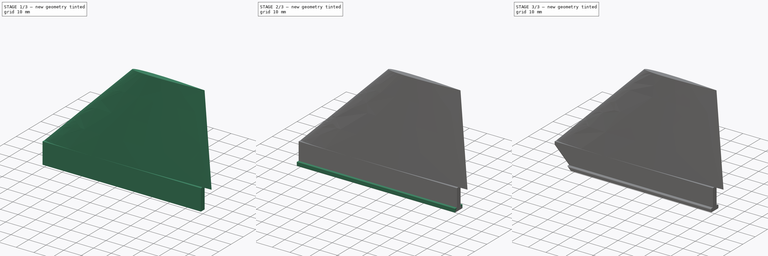
[diagram: build sequence overview — one tinted view per stage of 3, left to right]
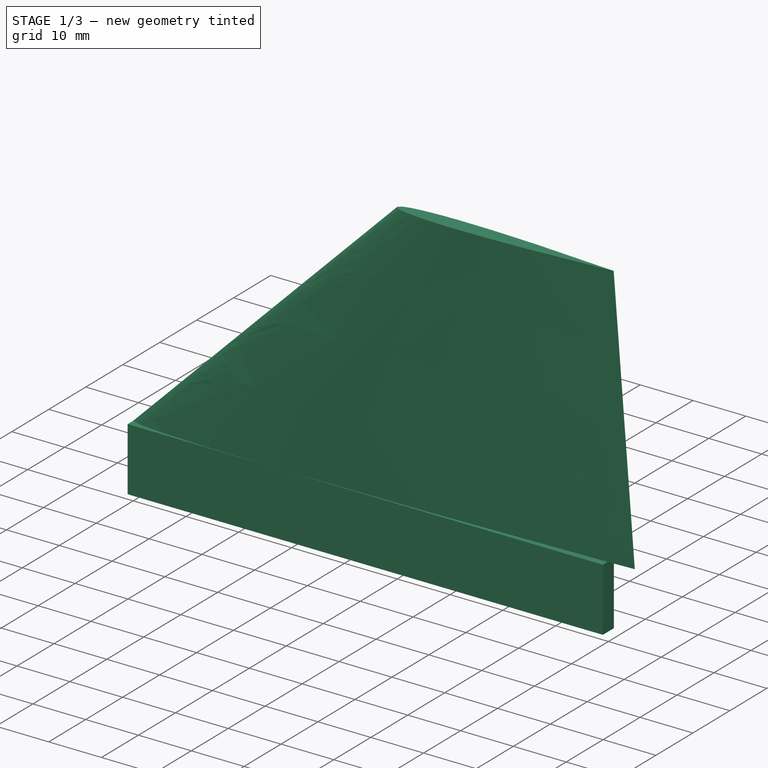
[diagram: stage 1 of 3 — iso view after this stage's code; geometry added in this stage tinted green]
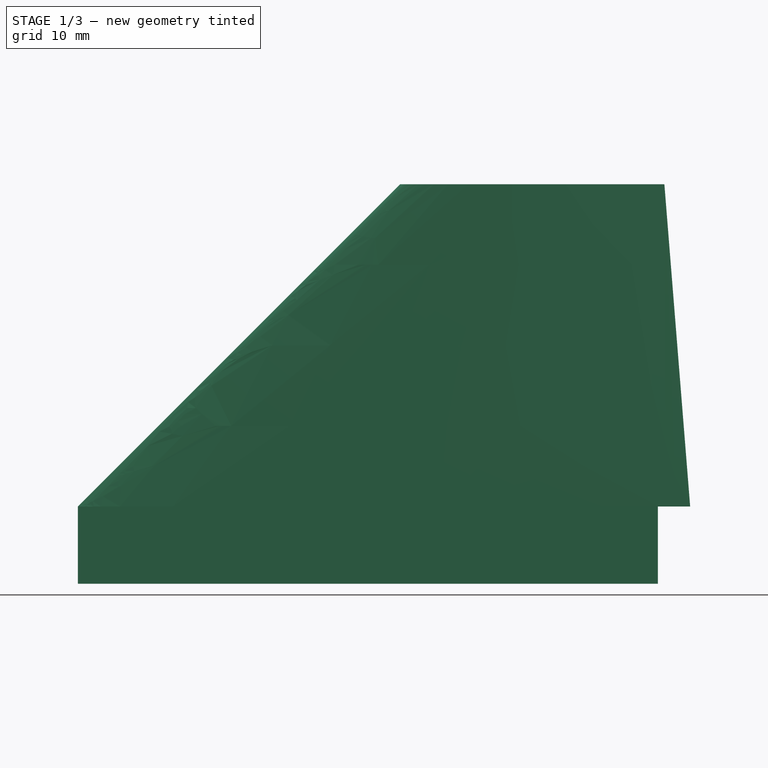
[diagram: stage 1 of 3 — front view after this stage's code; geometry added in this stage tinted green]
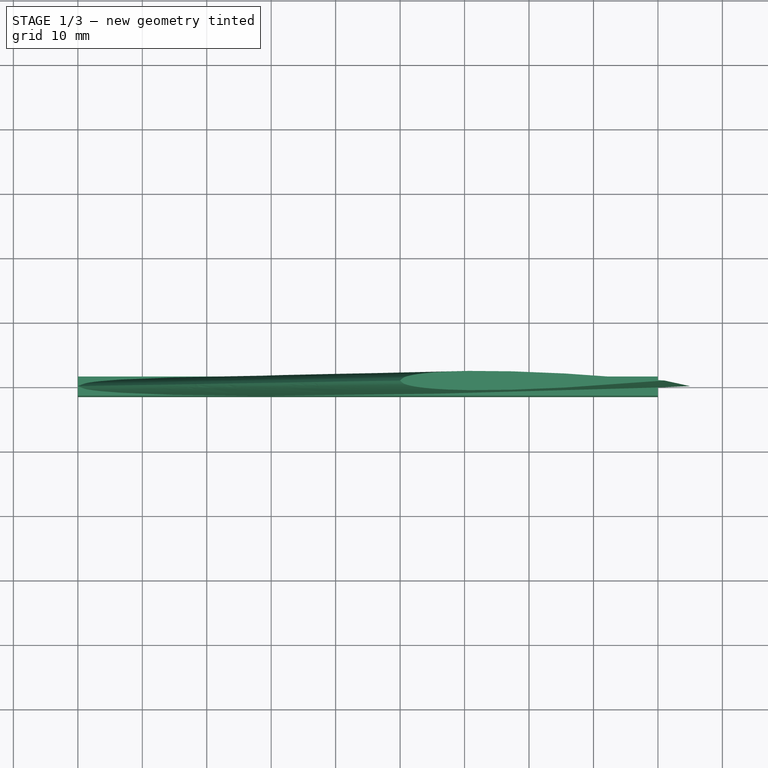
[diagram: stage 1 of 3 — top view after this stage's code; geometry added in this stage tinted green]
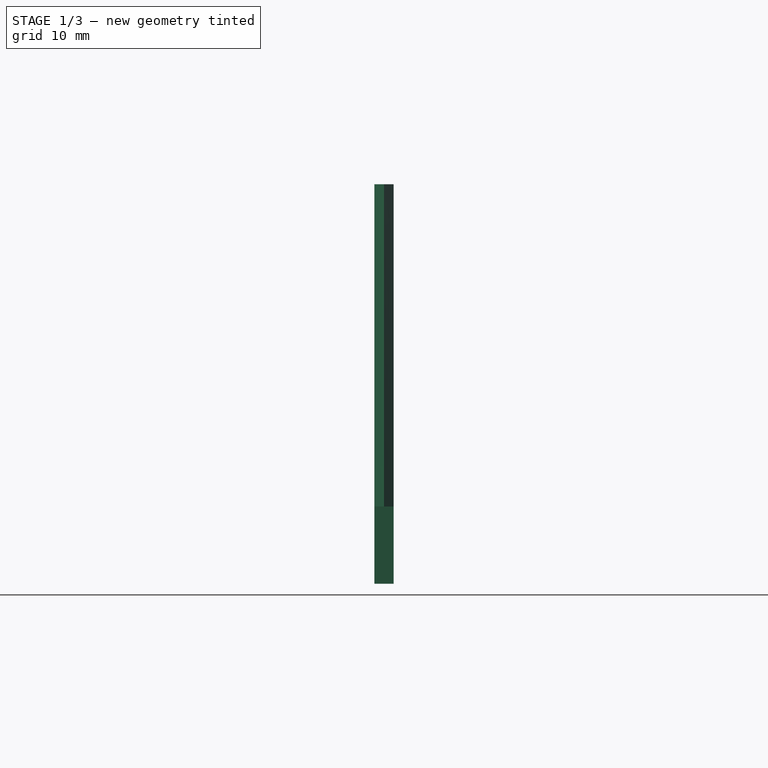
[diagram: stage 1 of 3 — right view after this stage's code; geometry added in this stage tinted green]
FCSTD DOCUMENT  (FreeCAD 1.0R39319 (Git))
Label: upper_fin
License: All rights reserved
objects: Part::FeaturePython×1, PartDesign::FeatureBase×1, Sketcher::SketchObject×1, PartDesign::Pad×1, PartDesign::Chamfer×1, PartDesign::Fillet×1, PartDesign::Body×1
note: 15 computed .brp shape members not serialized (recipe doc carries the construction recipe); baked Part::Feature solids carry a one-line shape summary decoded from their .brp

FEATURE [Part::FeaturePython] Fin  # WARN: FeaturePython — macro-defined, semantics opaque (R4)
  AngleOffset = 0
  AutoDiameter = true
  AutoHeight = false
  AxialOffset = 0
  Cant = 0
  FinCount = 3
  FinSet = false
  FinSpacing = 120
  FinType = 0
  Height = 50
  Length = 0
  LocationReference = 2
  MinimumEdge = false
  MinimumEdgeSize = 0.2
  RadialOffset = 0
  RadialReference = 0
  RootChord = 95
  RootCrossSection = 2
  RootLength1 = 2e+15
  RootLength2 = 8e+15
  RootPerCent = true
  RootThickness = 3
  Span = 81.28
  SweepAngle = 45
  SweepLength = 50
  TipChord = 41
  TipCrossSection = 0
  TipLength1 = 2e+15
  TipLength2 = 8e+15
  TipPerCent = true
  TipSameThickness = true
  TipThickness = 3
  Ttw = true
  TtwAutoHeight = false
  TtwHeight = 12
  TtwLength = 90
  TtwOffset = 5
  TtwThickness = 3
  TubeAutoOuterDiameter = true
  TubeOuterDiameter = 0
  TubeThickness = 1
FEATURE [PartDesign::FeatureBase] BaseFeature
  BaseFeature = -> Fin
  Suppressed = false
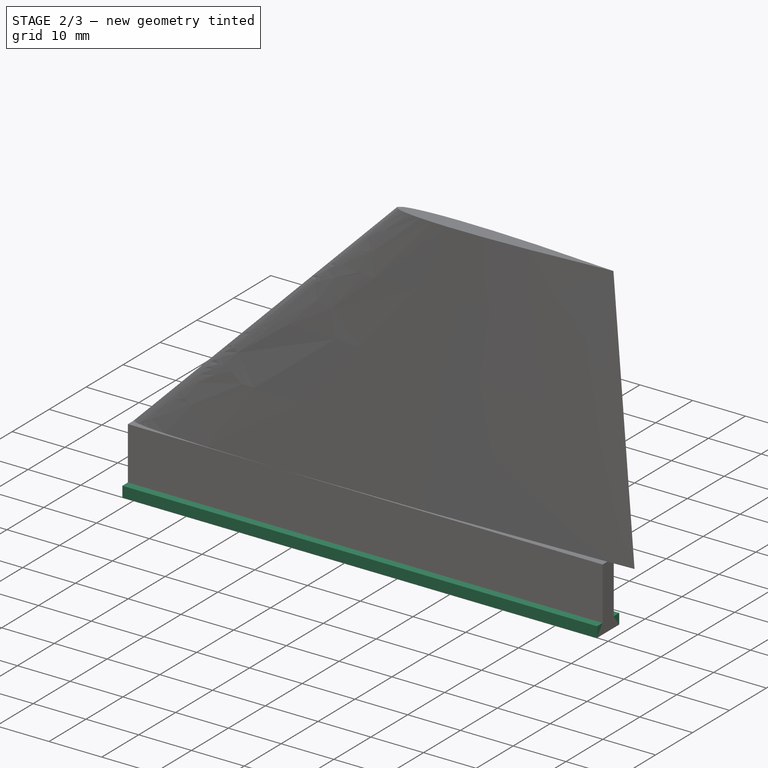
[diagram: stage 2 of 3 — iso view after this stage's code; geometry added in this stage tinted green]
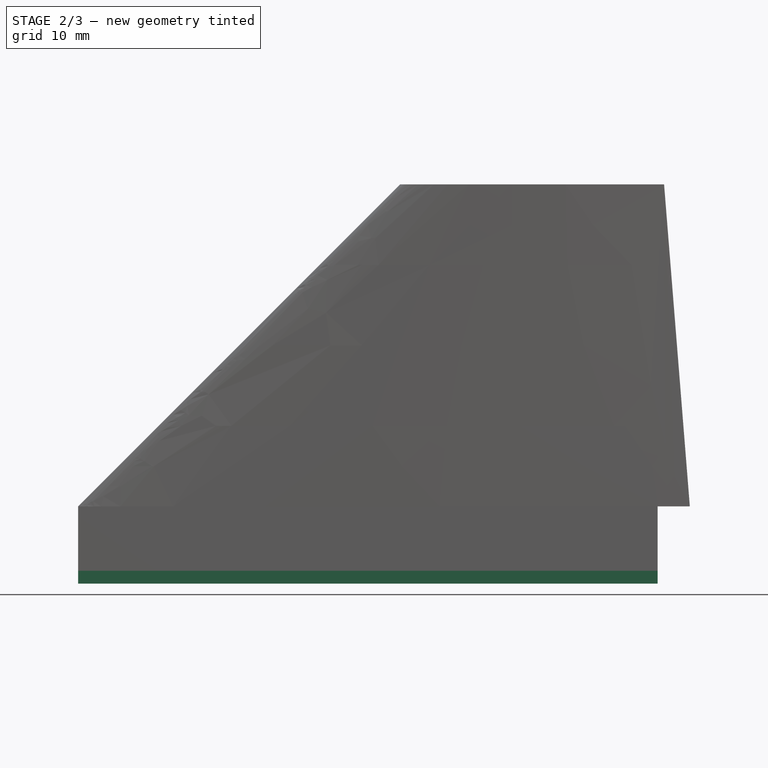
[diagram: stage 2 of 3 — front view after this stage's code; geometry added in this stage tinted green]
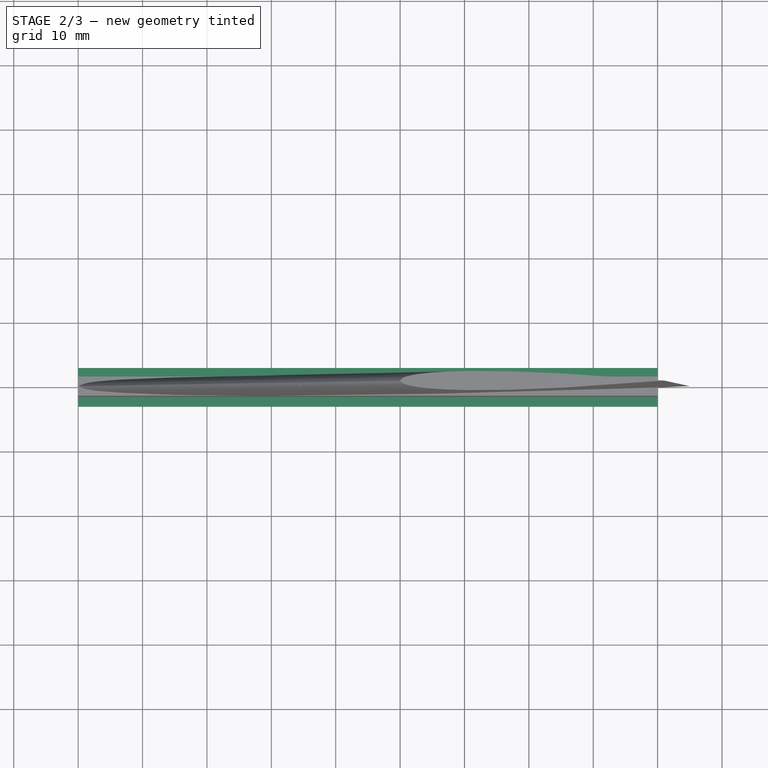
[diagram: stage 2 of 3 — top view after this stage's code; geometry added in this stage tinted green]
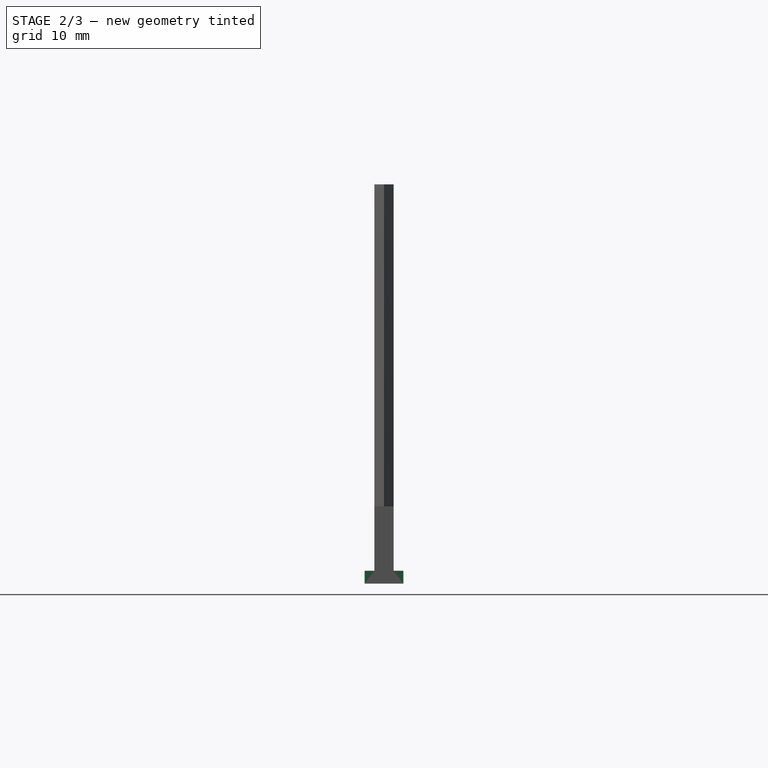
[diagram: stage 2 of 3 — right view after this stage's code; geometry added in this stage tinted green]
FEATURE [Sketcher::SketchObject] Sketch
  ArcFitTolerance = 1e-06
  AttachmentSupport = -> [BaseFeature]
  ExternalGeometry = -> [BaseFeature]
  FullyConstrained = true
  MakeInternals = false
  MapMode = 5
  Placement = pos=(90,0,0) rot=(0.57735,0.57735,0.57735;2.0944rad)
  sketch-geometry (8):
    g0: LineSegment StartX=1.5 StartY=-12 StartZ=0 EndX=3 EndY=-12 EndZ=0
    g1: LineSegment StartX=3 StartY=-12 StartZ=0 EndX=3 EndY=-10 EndZ=0
    g2: LineSegment StartX=3 StartY=-10 StartZ=0 EndX=1.5 EndY=-10 EndZ=0
    g3: LineSegment StartX=1.5 StartY=-10 StartZ=0 EndX=1.5 EndY=-12 EndZ=0
    g4: LineSegment StartX=-1.5 StartY=-12 StartZ=0 EndX=-3 EndY=-12 EndZ=0
    g5: LineSegment StartX=-3 StartY=-12 StartZ=0 EndX=-3 EndY=-10 EndZ=0
    g6: LineSegment StartX=-3 StartY=-10 StartZ=0 EndX=-1.5 EndY=-10 EndZ=0
    g7: LineSegment StartX=-1.5 StartY=-10 StartZ=0 EndX=-1.5 EndY=-12 EndZ=0
  constraints (20):
    c: Coincident(g-5,g0)
    c: Horizontal(g0)
    c: Coincident(g0,g1)
    c: Coincident(g1,g2)
    c: PointOnObject(g2,g-4)
    c: Horizontal(g2)
    c: Coincident(g2,g3)
    c: Coincident(g3,g0)
    c: Coincident(g-5,g4)
    c: Horizontal(g4)
    c: Coincident(g4,g5)
    c: Coincident(g5,g6)
    c: Coincident(g6,g7)
    c: Coincident(g7,g4)
    c: Symmetric(g6,g2,g-2)
    c: Symmetric(g5,g1,g-2)
    c: Vertical(g5)
    c: Vertical(g1)
    c: DistanceY(g0,g1) = 2
    c: DistanceX(g2,g1) = 1.5
FEATURE [PartDesign::Pad] Pad
  BaseFeature = -> BaseFeature
  Direction = (1,0,0)
  Length = 90
  Length2 = 10
  Profile = -> Sketch
  ReferenceAxis = -> Sketch [N_Axis]
  Refine = true
  Reversed = true
  Suppressed = false
  Type = 0
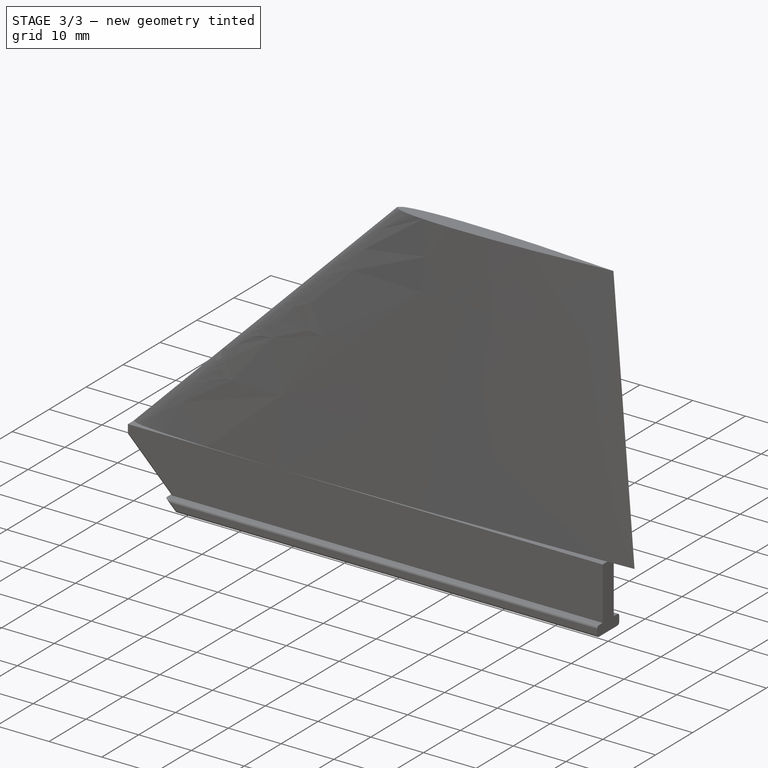
[diagram: stage 3 of 3 — iso view after this stage's code; geometry added in this stage tinted green]
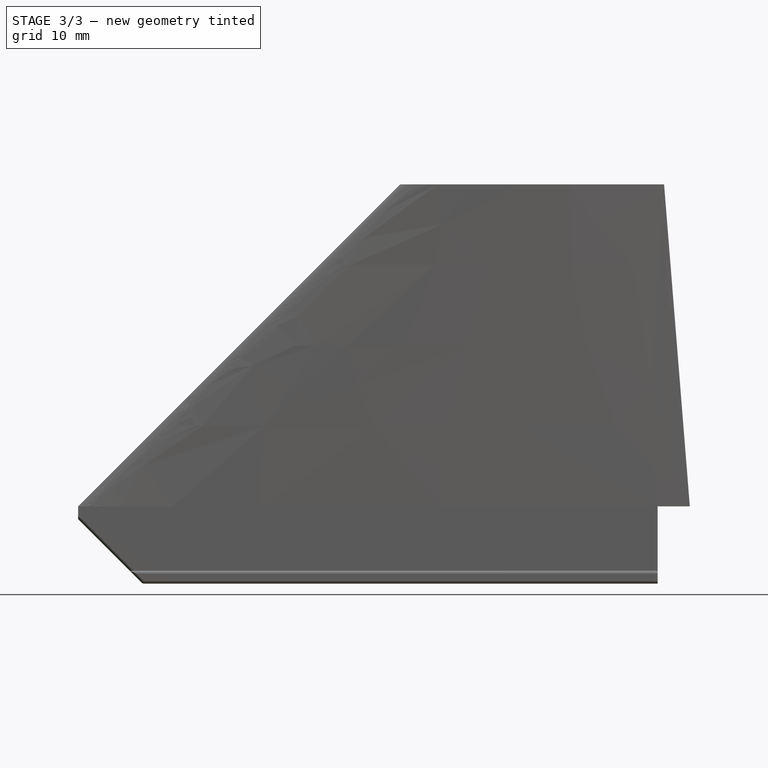
[diagram: stage 3 of 3 — front view after this stage's code; geometry added in this stage tinted green]
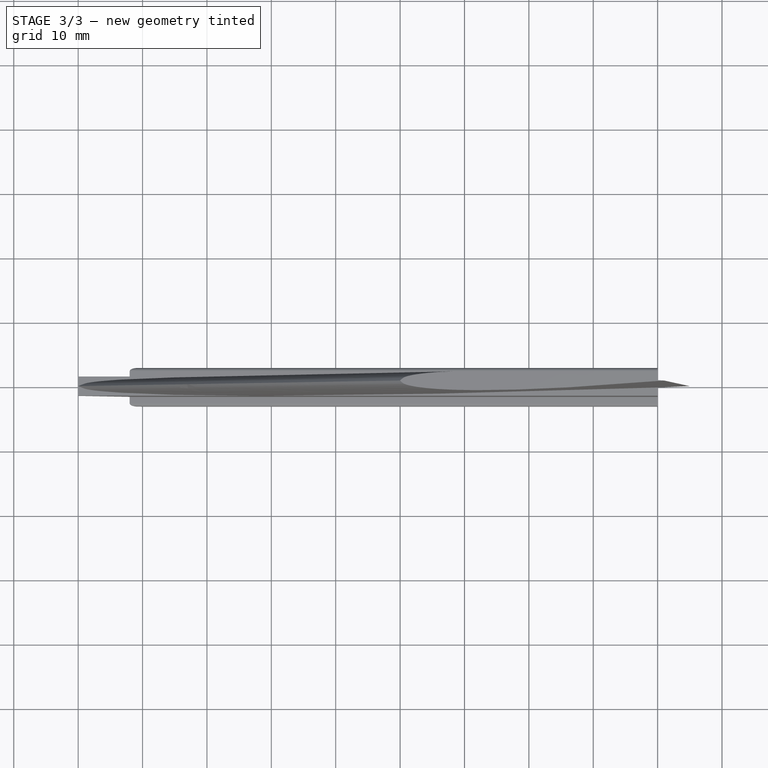
[diagram: stage 3 of 3 — top view after this stage's code; geometry added in this stage tinted green]
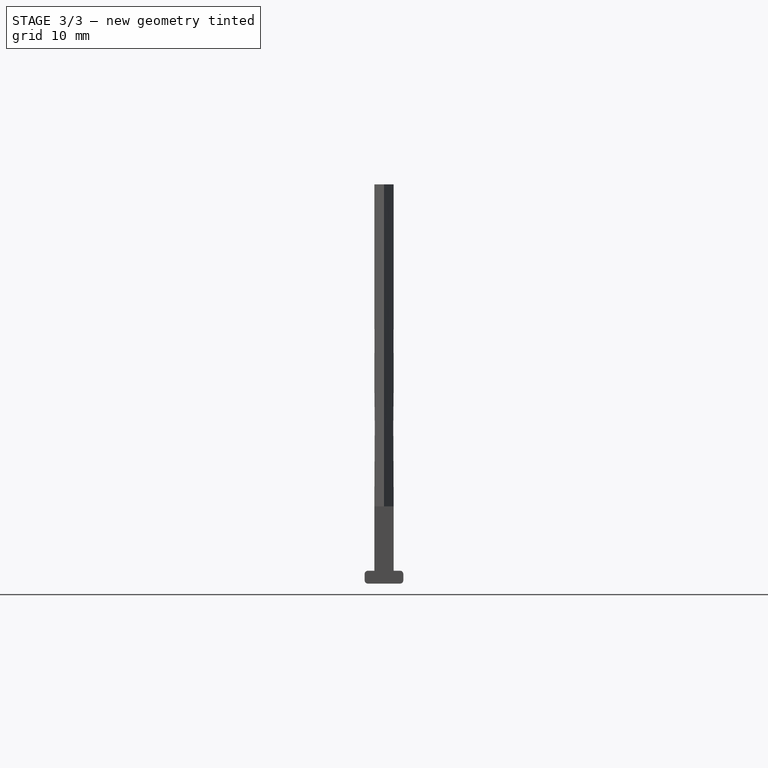
[diagram: stage 3 of 3 — right view after this stage's code; geometry added in this stage tinted green]
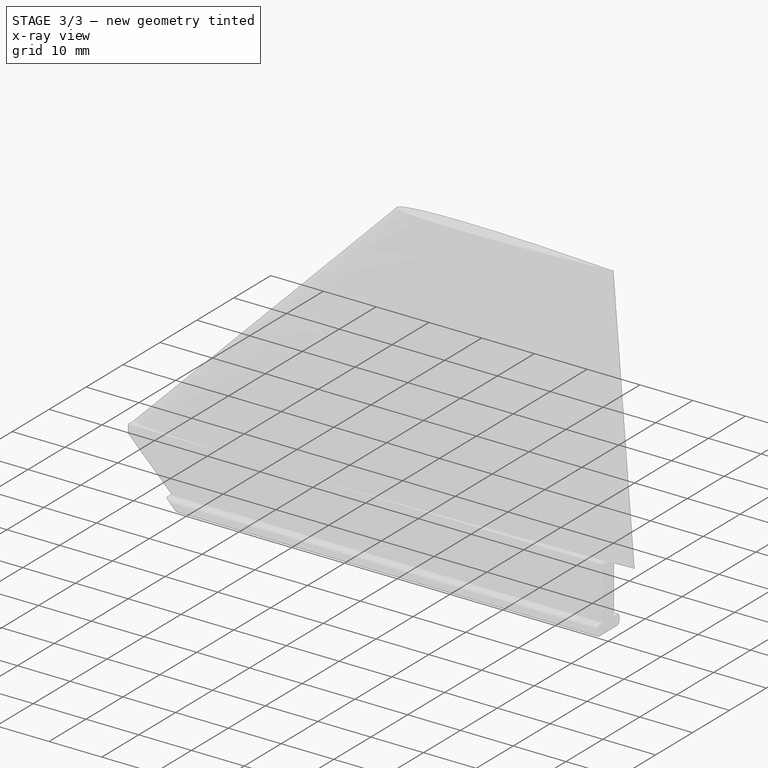
[diagram: stage 3 of 3 — x-ray composite at the iso view; earlier geometry ghosted, this stage's added geometry solid]
FEATURE [PartDesign::Chamfer] Chamfer
  Angle = 45
  Base = -> Pad [Edge42]
  BaseFeature = -> Pad
  ChamferType = 0
  FlipDirection = false
  Refine = true
  Size = 10
  Size2 = 1
  SupportTransform = false
  Suppressed = false
  UseAllEdges = false
FEATURE [PartDesign::Fillet] Fillet
  Base = -> Chamfer [Edge11,Edge8,Edge4,Edge1,Edge2,Edge6,Edge13,Edge23,Edge5]
  BaseFeature = -> Chamfer
  Radius = 0.5
  Refine = true
  SupportTransform = false
  Suppressed = false
  UseAllEdges = false
FEATURE [PartDesign::Body] Body
  AllowCompound = false
  BaseFeature = -> Fin
  Group = -> [BaseFeature,Sketch,Pad,Chamfer,Fillet]
  Origin = -> Origin
  Tip = -> Fillet
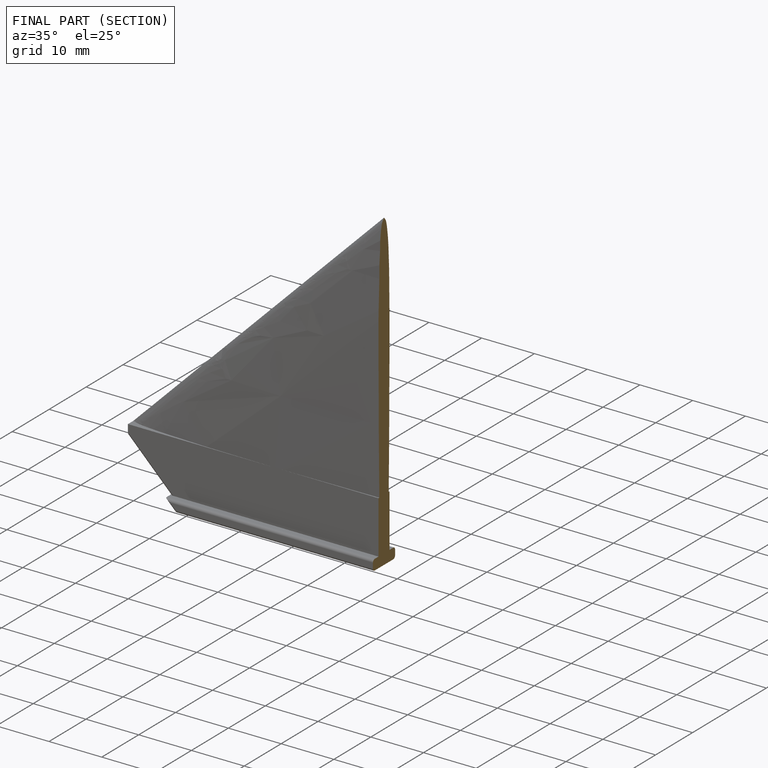
[diagram: finished part — half-section view (interior)]
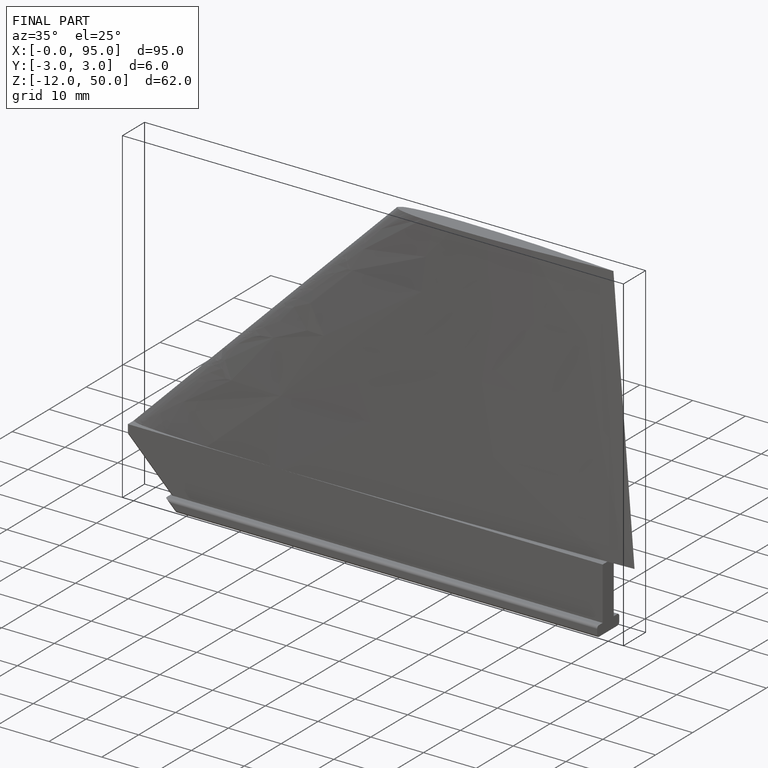
[diagram: finished part — iso view with bounding-box wireframe]
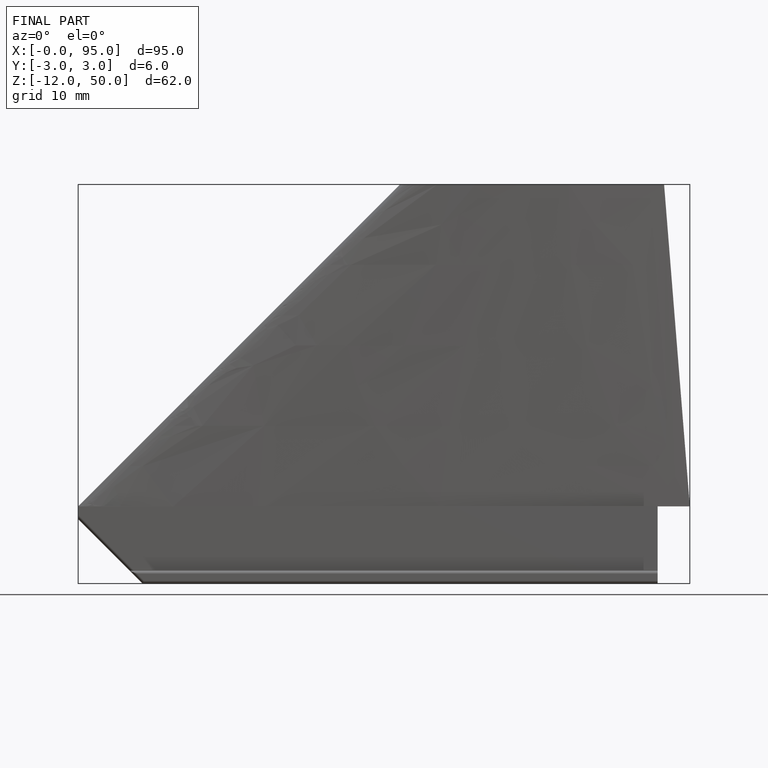
[diagram: finished part — front view with bounding-box wireframe]
